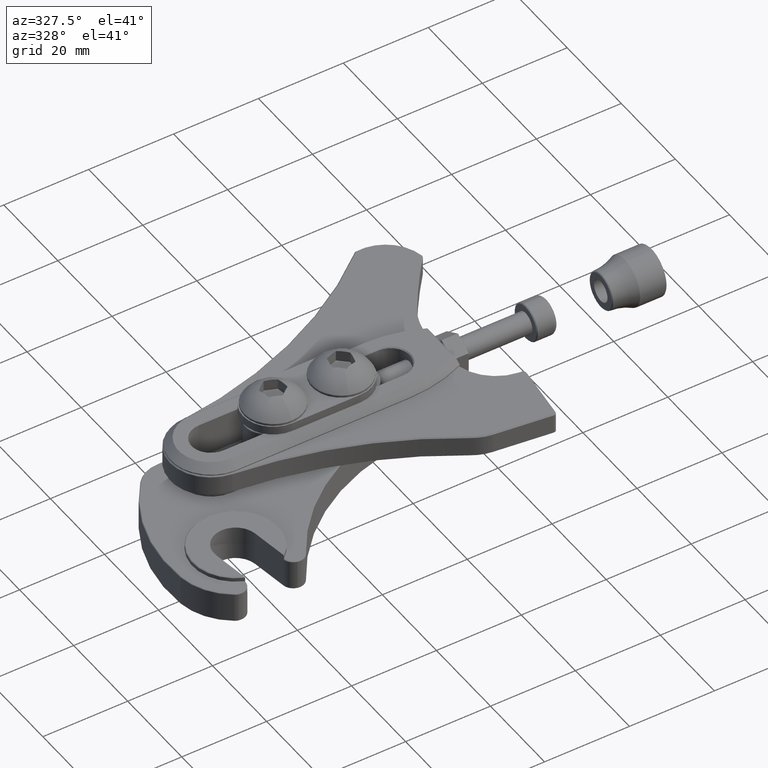
[diagram: clean part render]
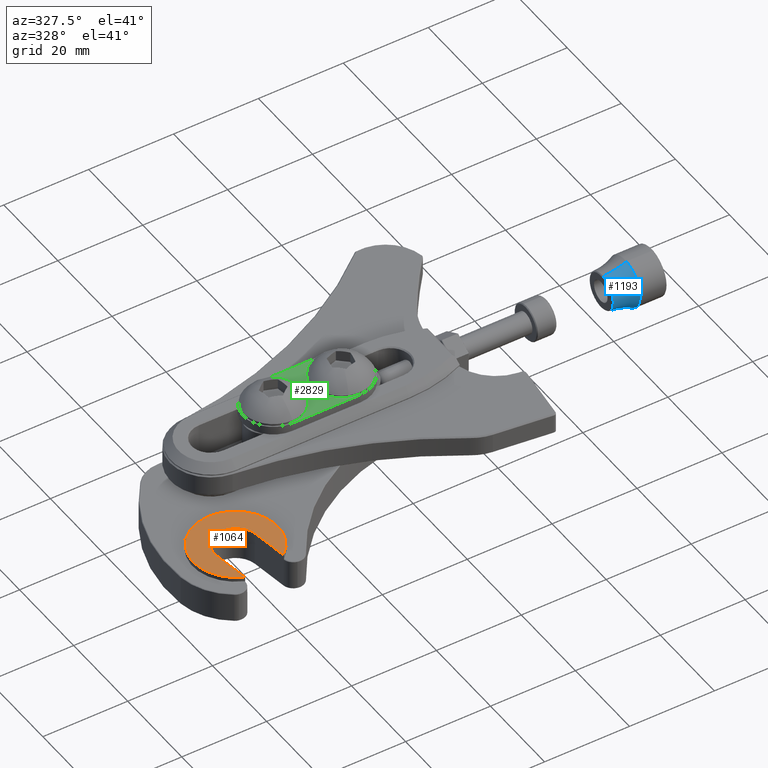
[diagram: same view with three faces highlighted in distinct colors, each labeled with its STEP entity id]
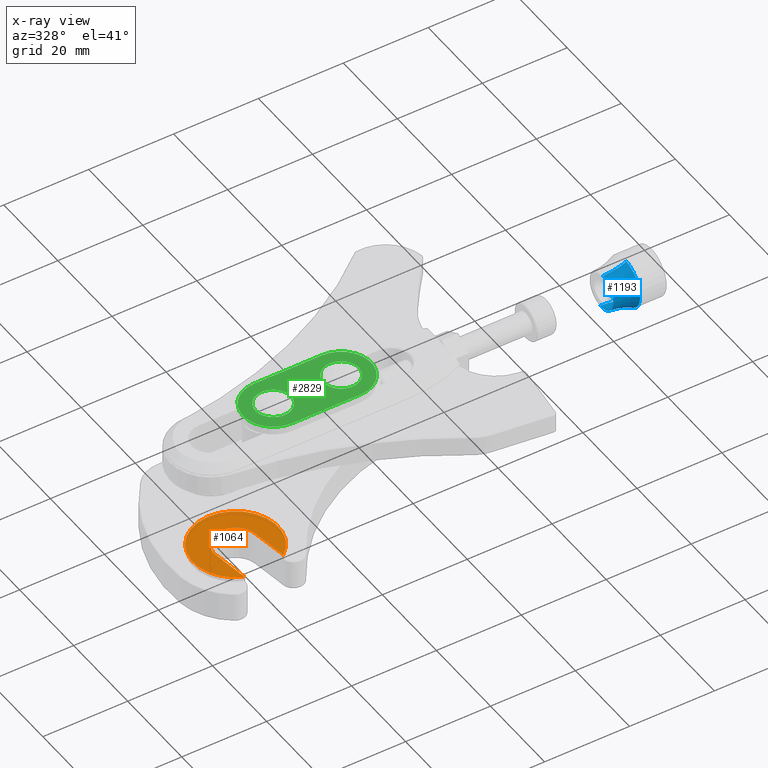
[diagram: x-ray of the same camera — body ghosted, the three highlighted faces saturated]
A machine part, auxiliary view with three faces highlighted in distinct colors.
The next image is the same camera in x-ray (body ghosted, the three faces saturated) — at least one of them is partly hidden behind the body in this view.
Their STEP definitions:

[orange] entity #1064 — the highlighted planar face has unit normal (0, 0, 1).
#45 = CARTESIAN_POINT ( 'NONE',  ( 4.549155748539999600, -0.4656073161459999300, 0.3150000000000000000 ) ) ;
#50 = DIRECTION ( 'NONE',  ( 0.9326616697853414900, 0.3607522830325797800, -0.0000000000000000000 ) ) ;
#87 = CARTESIAN_POINT ( 'NONE',  ( 4.200256271273000100, -0.4933411491220000000, 0.3150000000000000000 ) ) ;
#88 = DIRECTION ( 'NONE',  ( 0.0000000000000000000, 0.0000000000000000000, 1.000000000000000000 ) ) ;
#89 = DIRECTION ( 'NONE',  ( 1.000000000000000000, 0.0000000000000000000, 0.0000000000000000000 ) ) ;
#154 = AXIS2_PLACEMENT_3D ( 'NONE', #87, #88, #89 ) ;
#219 = AXIS2_PLACEMENT_3D ( 'NONE', #6655, #6659, #6660 ) ;
#311 = ORIENTED_EDGE ( 'NONE', *, *, #6785, .T. ) ;
#315 = ORIENTED_EDGE ( 'NONE', *, *, #6795, .T. ) ;
#317 = ORIENTED_EDGE ( 'NONE', *, *, #4550, .T. ) ;
#318 = ORIENTED_EDGE ( 'NONE', *, *, #6792, .T. ) ;
#803 = EDGE_CURVE ( 'NONE', #2601, #1866, #2999, .T. ) ;
#914 = ORIENTED_EDGE ( 'NONE', *, *, #803, .T. ) ;
#967 = VERTEX_POINT ( 'NONE', #7251 ) ;
#1064 = ADVANCED_FACE ( 'NONE', ( #5214 ), #6657, .T. ) ;
#1772 = EDGE_LOOP ( 'NONE', ( #318, #311, #914, #317, #315 ) ) ;
#1866 = VERTEX_POINT ( 'NONE', #5472 ) ;
#1879 = VERTEX_POINT ( 'NONE', #5485 ) ;
#1884 = VERTEX_POINT ( 'NONE', #5490 ) ;
#2601 = VERTEX_POINT ( 'NONE', #5590 ) ;
#2999 = CIRCLE ( 'NONE', #154, 0.09999999999999947800 ) ;
#3610 = CARTESIAN_POINT ( 'NONE',  ( 4.621306205146000300, -0.6521396501030000100, 0.3150000000000000000 ) ) ;
#3611 = DIRECTION ( 'NONE',  ( 0.0000000000000000000, 0.0000000000000000000, 1.000000000000000000 ) ) ;
#3612 = DIRECTION ( 'NONE',  ( 1.000000000000000000, 0.0000000000000000000, 0.0000000000000000000 ) ) ;
#3615 = CARTESIAN_POINT ( 'NONE',  ( 4.374338654618927800, -0.9621064012333939700, 0.3150000000000000000 ) ) ;
#3624 = DIRECTION ( 'NONE',  ( -0.9326616697868580500, -0.3607522830286587500, -0.0000000000000000000 ) ) ;
#3640 = CARTESIAN_POINT ( 'NONE',  ( 4.621306205146000300, -0.6521396501030000100, 0.3150000000000000000 ) ) ;
#3641 = DIRECTION ( 'NONE',  ( -0.0000000000000000000, -0.0000000000000000000, -1.000000000000000000 ) ) ;
#3642 = DIRECTION ( 'NONE',  ( 1.000000000000000000, 0.0000000000000000000, 0.0000000000000000000 ) ) ;
#3772 = LINE ( 'NONE', #45, #3773 ) ;
#3773 = VECTOR ( 'NONE', #50, 39.37007874015748900 ) ;
#4191 = CIRCLE ( 'NONE', #5346, 0.3949999999999994600 ) ;
#4197 = LINE ( 'NONE', #3615, #4199 ) ;
#4198 = CIRCLE ( 'NONE', #5350, 0.2000000000003972800 ) ;
#4199 = VECTOR ( 'NONE', #3624, 39.37007874015748900 ) ;
#4550 = EDGE_CURVE ( 'NONE', #1866, #1879, #3772, .T. ) ;
#5214 = FACE_OUTER_BOUND ( 'NONE', #1772, .T. ) ;
#5346 = AXIS2_PLACEMENT_3D ( 'NONE', #3610, #3611, #3612 ) ;
#5350 = AXIS2_PLACEMENT_3D ( 'NONE', #3640, #3641, #3642 ) ;
#5472 = CARTESIAN_POINT ( 'NONE',  ( 4.236331499576070100, -0.5866073161006065700, 0.3150000000000000000 ) ) ;
#5485 = CARTESIAN_POINT ( 'NONE',  ( 4.549155748539999600, -0.4656073161459999300, 0.3150000000000000000 ) ) ;
#5490 = CARTESIAN_POINT ( 'NONE',  ( 4.693456661752766700, -0.8386719840603970000, 0.3150000000000000000 ) ) ;
#5590 = CARTESIAN_POINT ( 'NONE',  ( 4.231493103113058900, -0.5883372560769475300, 0.3150000000000000000 ) ) ;
#6655 = CARTESIAN_POINT ( 'NONE',  ( 4.621306205146000300, -0.6521396501030000100, 0.3150000000000000000 ) ) ;
#6657 = PLANE ( 'NONE',  #219 ) ;
#6659 = DIRECTION ( 'NONE',  ( 0.0000000000000000000, 0.0000000000000000000, 1.000000000000000000 ) ) ;
#6660 = DIRECTION ( 'NONE',  ( 1.000000000000000000, 0.0000000000000000000, -0.0000000000000000000 ) ) ;
#6785 = EDGE_CURVE ( 'NONE', #967, #2601, #4191, .T. ) ;
#6792 = EDGE_CURVE ( 'NONE', #1884, #967, #4197, .T. ) ;
#6795 = EDGE_CURVE ( 'NONE', #1879, #1884, #4198, .T. ) ;
#7251 = CARTESIAN_POINT ( 'NONE',  ( 4.375769315265049600, -0.9615530236142133500, 0.3150000000000000000 ) ) ;

[blue] entity #1193 — the highlighted toroidal blend (fillet) surface has major radius 16.4009 mm and minor (blend) radius 12.1009 mm.
#614 = VERTEX_POINT ( 'NONE', #1603 ) ;
#616 = VERTEX_POINT ( 'NONE', #1605 ) ;
#618 = VERTEX_POINT ( 'NONE', #1607 ) ;
#679 = ORIENTED_EDGE ( 'NONE', *, *, #4739, .T. ) ;
#680 = ORIENTED_EDGE ( 'NONE', *, *, #4738, .T. ) ;
#683 = ORIENTED_EDGE ( 'NONE', *, *, #4737, .T. ) ;
#686 = ORIENTED_EDGE ( 'NONE', *, *, #4736, .F. ) ;
#1193 = ADVANCED_FACE ( 'NONE', ( #7048 ), #7021, .F. ) ;
#1603 = CARTESIAN_POINT ( 'NONE',  ( 0.007940188329034042100, 6.618820093689522300E-018, 0.1693575111636797500 ) ) ;
#1605 = CARTESIAN_POINT ( 'NONE',  ( 0.2224409448818898700, 3.114306712822122500E-018, 0.2244094488188982400 ) ) ;
#1607 = CARTESIAN_POINT ( 'NONE',  ( 0.2224409448818898700, 2.436792460671616600E-017, -0.2244094488188982400 ) ) ;
#1737 = VERTEX_POINT ( 'NONE', #5415 ) ;
#1905 = EDGE_LOOP ( 'NONE', ( #679, #680, #683, #686 ) ) ;
#3362 = AXIS2_PLACEMENT_3D ( 'NONE', #6079, #6078, #6081 ) ;
#4053 = CIRCLE ( 'NONE', #5304, 0.4764131046119243200 ) ;
#4054 = CIRCLE ( 'NONE', #5302, 0.4764131046119243200 ) ;
#4055 = CIRCLE ( 'NONE', #5303, 0.2244094488188979900 ) ;
#4056 = CIRCLE ( 'NONE', #5305, 0.1693575111636797500 ) ;
#4736 = EDGE_CURVE ( 'NONE', #614, #616, #4054, .T. ) ;
#4737 = EDGE_CURVE ( 'NONE', #618, #616, #4055, .T. ) ;
#4738 = EDGE_CURVE ( 'NONE', #1737, #618, #4053, .T. ) ;
#4739 = EDGE_CURVE ( 'NONE', #614, #1737, #4056, .T. ) ;
#5302 = AXIS2_PLACEMENT_3D ( 'NONE', #5619, #5620, #5621 ) ;
#5303 = AXIS2_PLACEMENT_3D ( 'NONE', #5622, #5623, #5624 ) ;
#5304 = AXIS2_PLACEMENT_3D ( 'NONE', #5627, #5628, #5629 ) ;
#5305 = AXIS2_PLACEMENT_3D ( 'NONE', #5632, #5633, #5634 ) ;
#5415 = CARTESIAN_POINT ( 'NONE',  ( 0.007940188329034042100, 2.137896519947241600E-017, -0.1693575111636794500 ) ) ;
#5619 = CARTESIAN_POINT ( 'NONE',  ( -3.591861382698563300E-029, 8.960949249217663400E-018, 0.6457044431946026300 ) ) ;
#5620 = DIRECTION ( 'NONE',  ( 2.016725985685427700E-028, -1.000000000000000000, 1.387778780781443200E-017 ) ) ;
#5621 = DIRECTION ( 'NONE',  ( 0.0000000000000000000, -1.387778780781443200E-017, -1.000000000000000000 ) ) ;
#5622 = CARTESIAN_POINT ( 'NONE',  ( 0.2224409448818898700, 1.707404996040164500E-017, -5.335640612625514100E-019 ) ) ;
#5623 = DIRECTION ( 'NONE',  ( -1.000000000000000000, -2.016725985685427700E-028, 5.560236786643725400E-029 ) ) ;
#5624 = DIRECTION ( 'NONE',  ( 0.0000000000000000000, 1.387778780781442700E-017, 1.000000000000000000 ) ) ;
#5627 = CARTESIAN_POINT ( 'NONE',  ( 3.591861382698562200E-029, 7.011503870613175300E-017, -0.6457044431946026300 ) ) ;
#5628 = DIRECTION ( 'NONE',  ( -2.016725985685427700E-028, 1.000000000000000000, 1.085868921069208900E-016 ) ) ;
#5629 = DIRECTION ( 'NONE',  ( 0.0000000000000000000, -1.085868921069208900E-016, 1.000000000000000000 ) ) ;
#5632 = CARTESIAN_POINT ( 'NONE',  ( 0.007940188329034042100, 4.268512490100411300E-018, -2.134256245050205600E-018 ) ) ;
#5633 = DIRECTION ( 'NONE',  ( 1.000000000000000000, 2.016725985685427700E-028, -5.560236786643725400E-029 ) ) ;
#5634 = DIRECTION ( 'NONE',  ( 0.0000000000000000000, 1.387778780781442900E-017, 1.000000000000000000 ) ) ;
#6078 = DIRECTION ( 'NONE',  ( -1.000000000000000000, -2.016725985685427700E-028, 5.560236786643725400E-029 ) ) ;
#6079 = CARTESIAN_POINT ( 'NONE',  ( 0.0000000000000000000, 0.0000000000000000000, 0.0000000000000000000 ) ) ;
#6081 = DIRECTION ( 'NONE',  ( 5.560236786643724300E-029, 1.387778780781443200E-017, 1.000000000000000000 ) ) ;
#7021 = TOROIDAL_SURFACE ( 'NONE', #3362, 0.6457044431946015200, 0.4764131046119243200 ) ;
#7048 = FACE_OUTER_BOUND ( 'NONE', #1905, .T. ) ;

[green] entity #2829 — the highlighted planar face has unit normal (0, 0, 1).
#133 = AXIS2_PLACEMENT_3D ( 'NONE', #1623, #1624, #1625 ) ;
#134 = AXIS2_PLACEMENT_3D ( 'NONE', #1627, #1628, #1629 ) ;
#710 = ORIENTED_EDGE ( 'NONE', *, *, #6821, .F. ) ;
#711 = ORIENTED_EDGE ( 'NONE', *, *, #6813, .F. ) ;
#712 = ORIENTED_EDGE ( 'NONE', *, *, #6822, .T. ) ;
#713 = ORIENTED_EDGE ( 'NONE', *, *, #6817, .T. ) ;
#714 = ORIENTED_EDGE ( 'NONE', *, *, #766, .T. ) ;
#715 = ORIENTED_EDGE ( 'NONE', *, *, #6823, .T. ) ;
#716 = ORIENTED_EDGE ( 'NONE', *, *, #767, .T. ) ;
#717 = ORIENTED_EDGE ( 'NONE', *, *, #768, .F. ) ;
#722 = ORIENTED_EDGE ( 'NONE', *, *, #6810, .F. ) ;
#766 = EDGE_CURVE ( 'NONE', #1845, #2590, #2954, .T. ) ;
#767 = EDGE_CURVE ( 'NONE', #2590, #2617, #2948, .T. ) ;
#768 = EDGE_CURVE ( 'NONE', #2581, #2630, #2943, .T. ) ;
#1616 = DIRECTION ( 'NONE',  ( -1.000000000000000000, -1.626099996228728600E-016, -0.0000000000000000000 ) ) ;
#1622 = CARTESIAN_POINT ( 'NONE',  ( -0.3150000000000000000, 0.2795275590551180600, 0.07874015748031496000 ) ) ;
#1623 = CARTESIAN_POINT ( 'NONE',  ( 0.3150000000000000000, 1.157291225194248600E-016, 0.07874015748031496000 ) ) ;
#1624 = DIRECTION ( 'NONE',  ( 0.0000000000000000000, 0.0000000000000000000, 1.000000000000000000 ) ) ;
#1625 = DIRECTION ( 'NONE',  ( 1.000000000000000000, 0.0000000000000000000, 0.0000000000000000000 ) ) ;
#1627 = CARTESIAN_POINT ( 'NONE',  ( 0.3150000000000000000, 1.157291225194248600E-016, 0.07874015748031496000 ) ) ;
#1628 = DIRECTION ( 'NONE',  ( 0.0000000000000000000, 0.0000000000000000000, 1.000000000000000000 ) ) ;
#1629 = DIRECTION ( 'NONE',  ( 1.000000000000000000, 0.0000000000000000000, 0.0000000000000000000 ) ) ;
#1845 = VERTEX_POINT ( 'NONE', #5440 ) ;
#1846 = VERTEX_POINT ( 'NONE', #5433 ) ;
#1847 = VERTEX_POINT ( 'NONE', #5442 ) ;
#1849 = VERTEX_POINT ( 'NONE', #5435 ) ;
#2581 = VERTEX_POINT ( 'NONE', #5570 ) ;
#2590 = VERTEX_POINT ( 'NONE', #5579 ) ;
#2617 = VERTEX_POINT ( 'NONE', #4971 ) ;
#2618 = VERTEX_POINT ( 'NONE', #4972 ) ;
#2630 = VERTEX_POINT ( 'NONE', #4984 ) ;
#2829 = ADVANCED_FACE ( 'NONE', ( #4318, #4326, #4313 ), #5032, .T. ) ;
#2943 = CIRCLE ( 'NONE', #134, 0.1633858267716535900 ) ;
#2945 = VECTOR ( 'NONE', #1616, 39.37007874015748100 ) ;
#2948 = LINE ( 'NONE', #1622, #2945 ) ;
#2954 = CIRCLE ( 'NONE', #133, 0.2795275590551180600 ) ;
#3455 = AXIS2_PLACEMENT_3D ( 'NONE', #5030, #5028, #5033 ) ;
#3676 = CARTESIAN_POINT ( 'NONE',  ( 0.3150000000000000000, 1.157291225194248600E-016, 0.07874015748031496000 ) ) ;
#3677 = DIRECTION ( 'NONE',  ( 0.0000000000000000000, 0.0000000000000000000, 1.000000000000000000 ) ) ;
#3678 = DIRECTION ( 'NONE',  ( 1.000000000000000000, 0.0000000000000000000, 0.0000000000000000000 ) ) ;
#3686 = CARTESIAN_POINT ( 'NONE',  ( -0.3150000000000000000, 0.0000000000000000000, 0.07874015748031496000 ) ) ;
#3687 = DIRECTION ( 'NONE',  ( 0.0000000000000000000, 0.0000000000000000000, 1.000000000000000000 ) ) ;
#3688 = DIRECTION ( 'NONE',  ( 1.000000000000000000, 0.0000000000000000000, 0.0000000000000000000 ) ) ;
#3695 = CARTESIAN_POINT ( 'NONE',  ( -0.3150000000000000000, 0.0000000000000000000, 0.07874015748031496000 ) ) ;
#3696 = DIRECTION ( 'NONE',  ( 0.0000000000000000000, 0.0000000000000000000, 1.000000000000000000 ) ) ;
#3697 = DIRECTION ( 'NONE',  ( 1.000000000000000000, 0.0000000000000000000, 0.0000000000000000000 ) ) ;
#3702 = CARTESIAN_POINT ( 'NONE',  ( -0.3150000000000000000, -0.2795275590551180600, 0.07874015748031496000 ) ) ;
#3703 = DIRECTION ( 'NONE',  ( 1.000000000000000000, 1.626099996228727600E-016, 0.0000000000000000000 ) ) ;
#3704 = CARTESIAN_POINT ( 'NONE',  ( -0.3150000000000000000, 0.0000000000000000000, 0.07874015748031496000 ) ) ;
#3705 = DIRECTION ( 'NONE',  ( 0.0000000000000000000, 0.0000000000000000000, 1.000000000000000000 ) ) ;
#3706 = DIRECTION ( 'NONE',  ( 1.000000000000000000, 0.0000000000000000000, 0.0000000000000000000 ) ) ;
#3708 = CARTESIAN_POINT ( 'NONE',  ( -0.3150000000000000000, 0.0000000000000000000, 0.07874015748031496000 ) ) ;
#3709 = DIRECTION ( 'NONE',  ( 0.0000000000000000000, 0.0000000000000000000, 1.000000000000000000 ) ) ;
#3710 = DIRECTION ( 'NONE',  ( 1.000000000000000000, 0.0000000000000000000, 0.0000000000000000000 ) ) ;
#4215 = CIRCLE ( 'NONE', #5356, 0.1633858267716535900 ) ;
#4228 = CIRCLE ( 'NONE', #5358, 0.1633858267716535900 ) ;
#4230 = CIRCLE ( 'NONE', #5360, 0.2795275590551180600 ) ;
#4239 = CIRCLE ( 'NONE', #5362, 0.1633858267716535900 ) ;
#4241 = CIRCLE ( 'NONE', #5363, 0.2795275590551180600 ) ;
#4242 = LINE ( 'NONE', #3702, #4243 ) ;
#4243 = VECTOR ( 'NONE', #3703, 39.37007874015748100 ) ;
#4313 = FACE_BOUND ( 'NONE', #6831, .T. ) ;
#4318 = FACE_BOUND ( 'NONE', #6832, .T. ) ;
#4326 = FACE_OUTER_BOUND ( 'NONE', #6848, .T. ) ;
#4971 = CARTESIAN_POINT ( 'NONE',  ( -0.3150000000000000000, 0.2795275590551180600, 0.07874015748031496000 ) ) ;
#4972 = CARTESIAN_POINT ( 'NONE',  ( -0.4783858267716535900, 0.0000000000000000000, 0.07874015748031496000 ) ) ;
#4984 = CARTESIAN_POINT ( 'NONE',  ( 0.1516141732283464200, 1.157291225194248600E-016, 0.07874015748031496000 ) ) ;
#5028 = DIRECTION ( 'NONE',  ( 0.0000000000000000000, 0.0000000000000000000, 1.000000000000000000 ) ) ;
#5030 = CARTESIAN_POINT ( 'NONE',  ( -0.3150000000000000000, 0.0000000000000000000, 0.07874015748031496000 ) ) ;
#5032 = PLANE ( 'NONE',  #3455 ) ;
#5033 = DIRECTION ( 'NONE',  ( 1.000000000000000000, 0.0000000000000000000, -0.0000000000000000000 ) ) ;
#5356 = AXIS2_PLACEMENT_3D ( 'NONE', #3676, #3677, #3678 ) ;
#5358 = AXIS2_PLACEMENT_3D ( 'NONE', #3686, #3687, #3688 ) ;
#5360 = AXIS2_PLACEMENT_3D ( 'NONE', #3695, #3696, #3697 ) ;
#5362 = AXIS2_PLACEMENT_3D ( 'NONE', #3704, #3705, #3706 ) ;
#5363 = AXIS2_PLACEMENT_3D ( 'NONE', #3708, #3709, #3710 ) ;
#5433 = CARTESIAN_POINT ( 'NONE',  ( -0.1516141732283464200, 2.000899297819494900E-017, 0.07874015748031496000 ) ) ;
#5435 = CARTESIAN_POINT ( 'NONE',  ( -0.3150000000000000000, -0.2795275590551180600, 0.07874015748031496000 ) ) ;
#5440 = CARTESIAN_POINT ( 'NONE',  ( 0.3149999999999998900, -0.2795275590551179500, 0.07874015748031496000 ) ) ;
#5442 = CARTESIAN_POINT ( 'NONE',  ( -0.5945275590551180000, 0.0000000000000000000, 0.07874015748031496000 ) ) ;
#5570 = CARTESIAN_POINT ( 'NONE',  ( 0.4783858267716535900, 1.357381154976198300E-016, 0.07874015748031496000 ) ) ;
#5579 = CARTESIAN_POINT ( 'NONE',  ( 0.3149999999999998400, 0.2795275590551181700, 0.07874015748031496000 ) ) ;
#6810 = EDGE_CURVE ( 'NONE', #2630, #2581, #4215, .T. ) ;
#6813 = EDGE_CURVE ( 'NONE', #2618, #1846, #4228, .T. ) ;
#6817 = EDGE_CURVE ( 'NONE', #1847, #1849, #4230, .T. ) ;
#6821 = EDGE_CURVE ( 'NONE', #1846, #2618, #4239, .T. ) ;
#6822 = EDGE_CURVE ( 'NONE', #2617, #1847, #4241, .T. ) ;
#6823 = EDGE_CURVE ( 'NONE', #1849, #1845, #4242, .T. ) ;
#6831 = EDGE_LOOP ( 'NONE', ( #722, #717 ) ) ;
#6832 = EDGE_LOOP ( 'NONE', ( #711, #710 ) ) ;
#6848 = EDGE_LOOP ( 'NONE', ( #712, #713, #715, #714, #716 ) ) ;